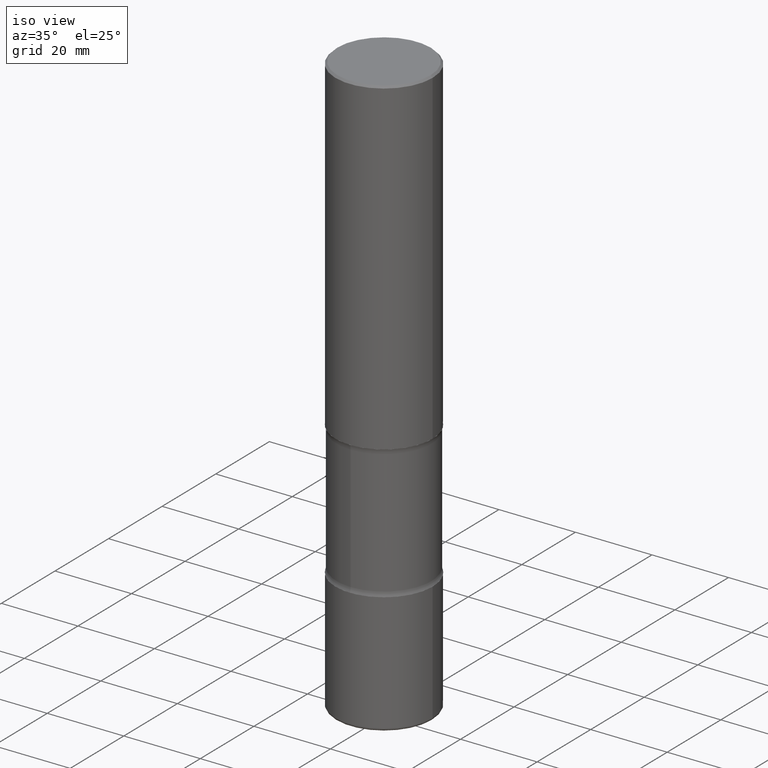
[diagram: clean part render]
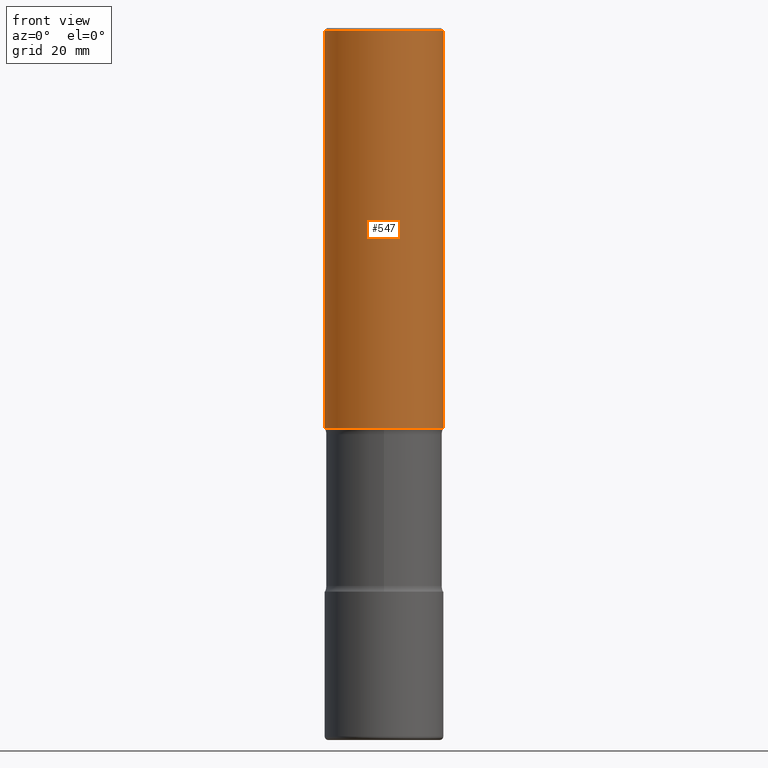
[diagram: tour spotlight — one face highlighted and labeled with its STEP entity id]
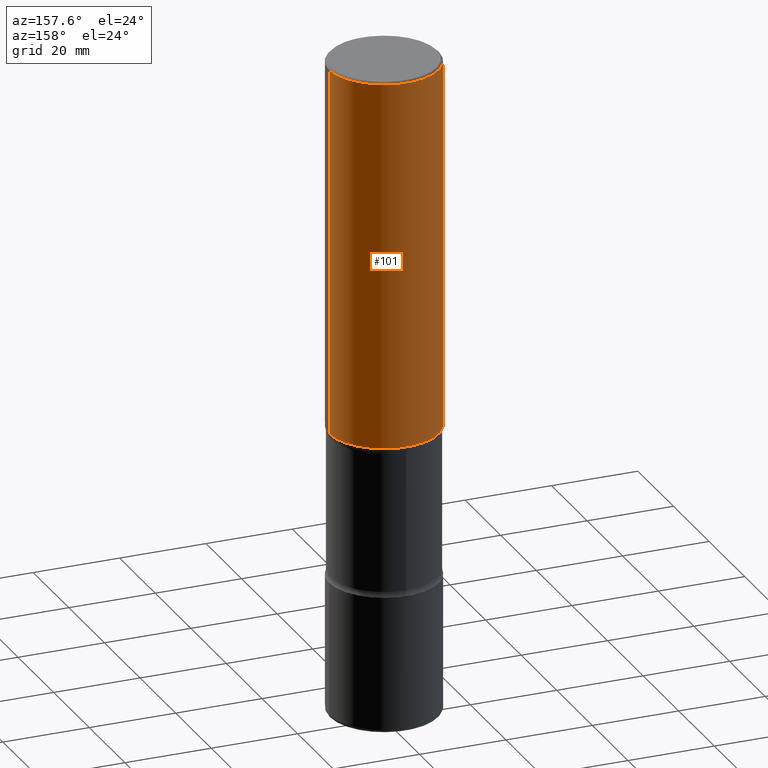
[diagram: tour spotlight — one face highlighted and labeled with its STEP entity id]
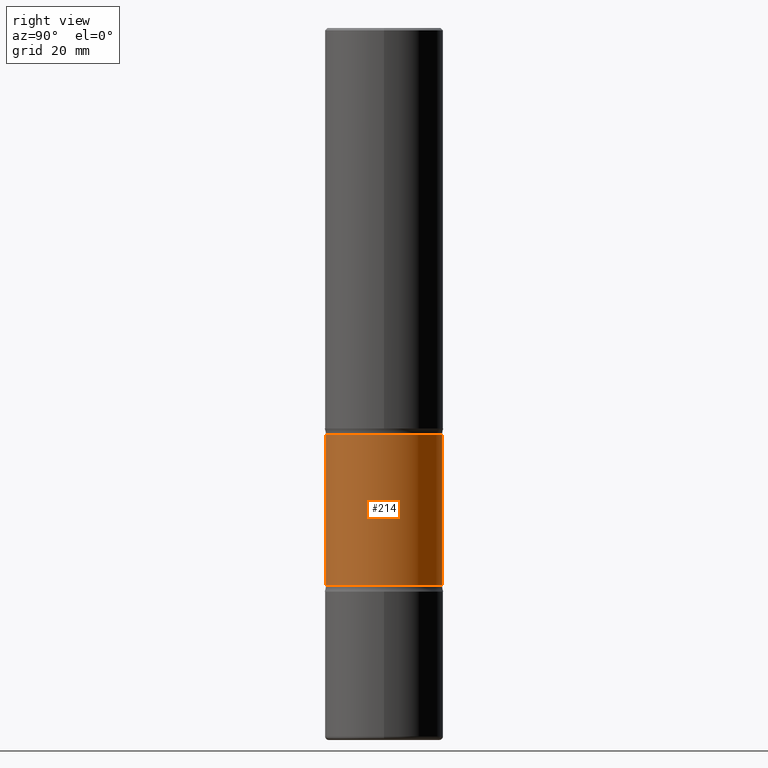
[diagram: tour spotlight — one face highlighted and labeled with its STEP entity id]
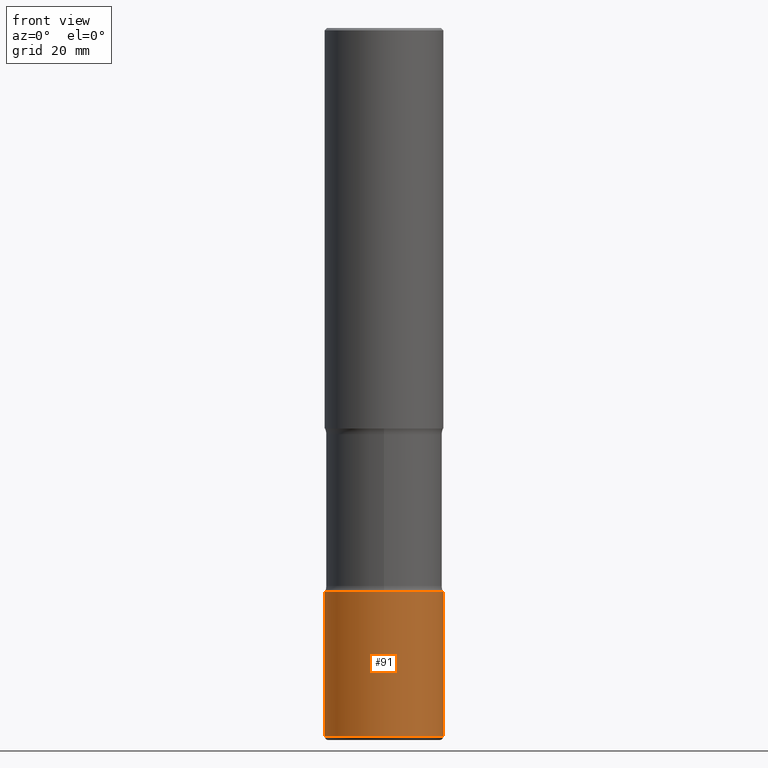
[diagram: tour spotlight — one face highlighted and labeled with its STEP entity id]
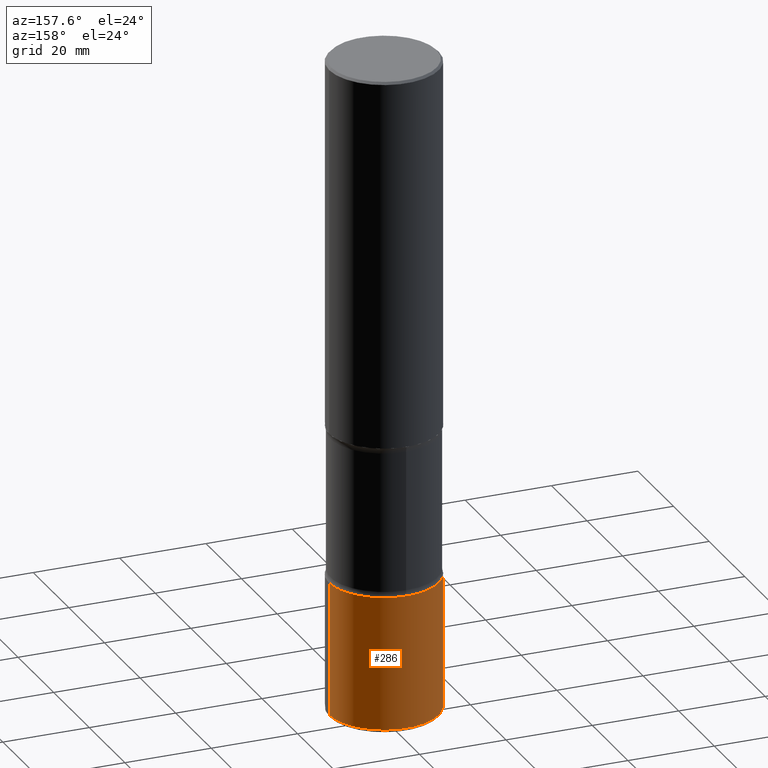
[diagram: tour spotlight — one face highlighted and labeled with its STEP entity id]
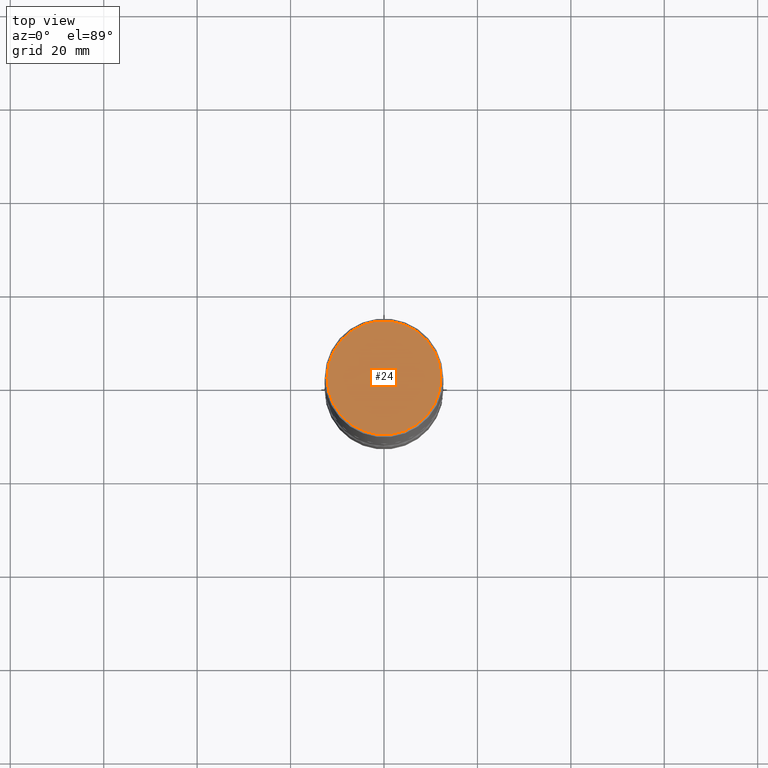
[diagram: tour spotlight — one face highlighted and labeled with its STEP entity id]
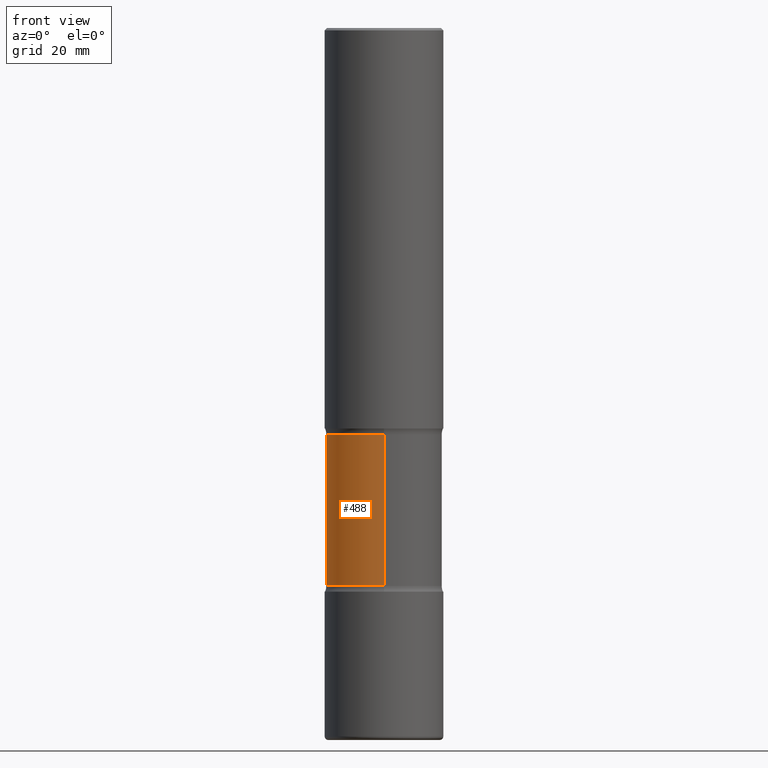
[diagram: tour spotlight — one face highlighted and labeled with its STEP entity id]
A machine part: a face-by-face anatomy tour. The part has 20 B-rep faces; the first image is the clean iso view, then the 7 largest visible faces are spotlighted one at a time (largest first), each with its STEP entity span.

Face 1 — front view, entity #547. In plain terms, the highlighted cylindrical surface (partial cylindrical patch) has radius 12.7 mm, axis along (-0, 0, 1).
Definition (entity closure, byte-faithful):
#4 = LINE ( 'NONE', #95, #504 ) ;
#19 = CARTESIAN_POINT ( 'NONE',  ( -0.5000000000000005551, 3.421651712066274396E-15, -0.02000000000000000042 ) ) ;
#35 = DIRECTION ( 'NONE',  ( -2.445468806185136877E-29, 3.491481338843145188E-15, 1.000000000000000000 ) ) ;
#48 = DIRECTION ( 'NONE',  ( -2.445468806185136877E-29, 3.491481338843145188E-15, 1.000000000000000000 ) ) ;
#63 = DIRECTION ( 'NONE',  ( 1.000000000000000000, -6.982962677686266711E-15, 4.876176775795935793E-29 ) ) ;
#78 = VECTOR ( 'NONE', #35, 39.37007874015748143 ) ;
#95 = CARTESIAN_POINT ( 'NONE',  ( 0.5000000000000006661, -3.491481338843138088E-15, 2.438088387897971260E-29 ) ) ;
#121 = DIRECTION ( 'NONE',  ( -2.445468806185136597E-29, 3.491481338843145583E-15, 1.000000000000000000 ) ) ;
#128 = AXIS2_PLACEMENT_3D ( 'NONE', #525, #310, #270 ) ;
#141 = VERTEX_POINT ( 'NONE', #494 ) ;
#167 = VERTEX_POINT ( 'NONE', #19 ) ;
#216 = ORIENTED_EDGE ( 'NONE', *, *, #332, .T. ) ;
#226 = ORIENTED_EDGE ( 'NONE', *, *, #491, .T. ) ;
#231 = CIRCLE ( 'NONE', #128, 0.5000000000000007772 ) ;
#236 = DIRECTION ( 'NONE',  ( -2.445468806185136597E-29, 3.491481338843145583E-15, 1.000000000000000000 ) ) ;
#248 = DIRECTION ( 'NONE',  ( 1.000000000000000000, -6.982962677686266711E-15, 0.000000000000000000 ) ) ;
#253 = LINE ( 'NONE', #424, #78 ) ;
#268 = CARTESIAN_POINT ( 'NONE',  ( -0.5000000000000007772, -2.374075893885732456E-15, -3.375000000000000444 ) ) ;
#270 = DIRECTION ( 'NONE',  ( 1.000000000000000000, -6.982962677686267499E-15, 0.000000000000000000 ) ) ;
#293 = EDGE_CURVE ( 'NONE', #167, #141, #346, .T. ) ;
#302 = EDGE_CURVE ( 'NONE', #382, #167, #253, .T. ) ;
#310 = DIRECTION ( 'NONE',  ( -2.445468806185136597E-29, 3.491481338843145583E-15, 1.000000000000000000 ) ) ;
#314 = EDGE_LOOP ( 'NONE', ( #375, #226, #216, #530 ) ) ;
#326 = AXIS2_PLACEMENT_3D ( 'NONE', #506, #121, #248 ) ;
#332 = EDGE_CURVE ( 'NONE', #444, #141, #4, .T. ) ;
#346 = CIRCLE ( 'NONE', #326, 0.5000000000000005551 ) ;
#375 = ORIENTED_EDGE ( 'NONE', *, *, #302, .F. ) ;
#382 = VERTEX_POINT ( 'NONE', #268 ) ;
#410 = CYLINDRICAL_SURFACE ( 'NONE', #505, 0.5000000000000006661 ) ;
#424 = CARTESIAN_POINT ( 'NONE',  ( -0.5000000000000006661, 3.552713678800505663E-15, -2.459467545127455974E-29 ) ) ;
#444 = VERTEX_POINT ( 'NONE', #476 ) ;
#453 = FACE_OUTER_BOUND ( 'NONE', #314, .T. ) ;
#476 = CARTESIAN_POINT ( 'NONE',  ( 0.5000000000000007772, -1.527523085743875734E-14, -3.375000000000000444 ) ) ;
#491 = EDGE_CURVE ( 'NONE', #382, #444, #231, .T. ) ;
#494 = CARTESIAN_POINT ( 'NONE',  ( 0.5000000000000005551, -3.500078625662632235E-15, -0.02000000000000000042 ) ) ;
#504 = VECTOR ( 'NONE', #48, 39.37007874015748143 ) ;
#505 = AXIS2_PLACEMENT_3D ( 'NONE', #539, #236, #63 ) ;
#506 = CARTESIAN_POINT ( 'NONE',  ( 4.890937612370273159E-31, -6.982962677686291609E-17, -0.02000000000000000042 ) ) ;
#525 = CARTESIAN_POINT ( 'NONE',  ( 8.253457220874837135E-29, -1.178374951859561767E-14, -3.375000000000000444 ) ) ;
#530 = ORIENTED_EDGE ( 'NONE', *, *, #293, .F. ) ;
#539 = CARTESIAN_POINT ( 'NONE',  ( 0.000000000000000000, 0.000000000000000000, 0.000000000000000000 ) ) ;
#547 = ADVANCED_FACE ( 'NONE', ( #453 ), #410, .T. ) ;

Face 2 — auxiliary view, entity #101. In plain terms, the highlighted cylindrical surface (partial cylindrical patch) has radius 12.7 mm, axis along (-0, 0, 1).
Definition (entity closure, byte-faithful):
#4 = LINE ( 'NONE', #95, #504 ) ;
#9 = CARTESIAN_POINT ( 'NONE',  ( 4.890937612370273159E-31, -6.982962677686291609E-17, -0.02000000000000000042 ) ) ;
#19 = CARTESIAN_POINT ( 'NONE',  ( -0.5000000000000005551, 3.421651712066274396E-15, -0.02000000000000000042 ) ) ;
#26 = DIRECTION ( 'NONE',  ( 1.000000000000000000, -6.982962677686266711E-15, 4.876176775795935793E-29 ) ) ;
#33 = ORIENTED_EDGE ( 'NONE', *, *, #302, .T. ) ;
#34 = EDGE_CURVE ( 'NONE', #141, #167, #98, .T. ) ;
#35 = DIRECTION ( 'NONE',  ( -2.445468806185136877E-29, 3.491481338843145188E-15, 1.000000000000000000 ) ) ;
#48 = DIRECTION ( 'NONE',  ( -2.445468806185136877E-29, 3.491481338843145188E-15, 1.000000000000000000 ) ) ;
#54 = AXIS2_PLACEMENT_3D ( 'NONE', #9, #305, #224 ) ;
#56 = AXIS2_PLACEMENT_3D ( 'NONE', #64, #405, #26 ) ;
#64 = CARTESIAN_POINT ( 'NONE',  ( 0.000000000000000000, 0.000000000000000000, 0.000000000000000000 ) ) ;
#65 = AXIS2_PLACEMENT_3D ( 'NONE', #499, #198, #114 ) ;
#78 = VECTOR ( 'NONE', #35, 39.37007874015748143 ) ;
#95 = CARTESIAN_POINT ( 'NONE',  ( 0.5000000000000006661, -3.491481338843138088E-15, 2.438088387897971260E-29 ) ) ;
#98 = CIRCLE ( 'NONE', #54, 0.5000000000000005551 ) ;
#101 = ADVANCED_FACE ( 'NONE', ( #149 ), #542, .T. ) ;
#114 = DIRECTION ( 'NONE',  ( 1.000000000000000000, -6.982962677686267499E-15, 0.000000000000000000 ) ) ;
#117 = EDGE_LOOP ( 'NONE', ( #490, #33, #355, #388 ) ) ;
#127 = CIRCLE ( 'NONE', #65, 0.5000000000000007772 ) ;
#141 = VERTEX_POINT ( 'NONE', #494 ) ;
#149 = FACE_OUTER_BOUND ( 'NONE', #117, .T. ) ;
#160 = EDGE_CURVE ( 'NONE', #444, #382, #127, .T. ) ;
#167 = VERTEX_POINT ( 'NONE', #19 ) ;
#198 = DIRECTION ( 'NONE',  ( -2.445468806185136597E-29, 3.491481338843145583E-15, 1.000000000000000000 ) ) ;
#224 = DIRECTION ( 'NONE',  ( 1.000000000000000000, -6.982962677686266711E-15, 0.000000000000000000 ) ) ;
#253 = LINE ( 'NONE', #424, #78 ) ;
#268 = CARTESIAN_POINT ( 'NONE',  ( -0.5000000000000007772, -2.374075893885732456E-15, -3.375000000000000444 ) ) ;
#302 = EDGE_CURVE ( 'NONE', #382, #167, #253, .T. ) ;
#305 = DIRECTION ( 'NONE',  ( -2.445468806185136597E-29, 3.491481338843145583E-15, 1.000000000000000000 ) ) ;
#332 = EDGE_CURVE ( 'NONE', #444, #141, #4, .T. ) ;
#355 = ORIENTED_EDGE ( 'NONE', *, *, #34, .F. ) ;
#382 = VERTEX_POINT ( 'NONE', #268 ) ;
#388 = ORIENTED_EDGE ( 'NONE', *, *, #332, .F. ) ;
#405 = DIRECTION ( 'NONE',  ( -2.445468806185136597E-29, 3.491481338843145583E-15, 1.000000000000000000 ) ) ;
#424 = CARTESIAN_POINT ( 'NONE',  ( -0.5000000000000006661, 3.552713678800505663E-15, -2.459467545127455974E-29 ) ) ;
#444 = VERTEX_POINT ( 'NONE', #476 ) ;
#476 = CARTESIAN_POINT ( 'NONE',  ( 0.5000000000000007772, -1.527523085743875734E-14, -3.375000000000000444 ) ) ;
#490 = ORIENTED_EDGE ( 'NONE', *, *, #160, .T. ) ;
#494 = CARTESIAN_POINT ( 'NONE',  ( 0.5000000000000005551, -3.500078625662632235E-15, -0.02000000000000000042 ) ) ;
#499 = CARTESIAN_POINT ( 'NONE',  ( 8.253457220874837135E-29, -1.178374951859561767E-14, -3.375000000000000444 ) ) ;
#504 = VECTOR ( 'NONE', #48, 39.37007874015748143 ) ;
#542 = CYLINDRICAL_SURFACE ( 'NONE', #56, 0.5000000000000006661 ) ;

Face 3 — right view, entity #214. In plain terms, the highlighted cylindrical surface (partial cylindrical patch) has radius 12.446 mm, axis along (0, -0, -1).
Definition (entity closure, byte-faithful):
#2 = VECTOR ( 'NONE', #434, 39.37007874015748143 ) ;
#3 = EDGE_LOOP ( 'NONE', ( #556, #431, #13, #83 ) ) ;
#13 = ORIENTED_EDGE ( 'NONE', *, *, #500, .F. ) ;
#51 = DIRECTION ( 'NONE',  ( 6.982962677686265922E-15, 1.000000000000000000, -3.345119992241955130E-15 ) ) ;
#53 = CARTESIAN_POINT ( 'NONE',  ( 3.421651712066419546E-15, 0.4899999999999793965, -6.000000000000001776 ) ) ;
#66 = DIRECTION ( 'NONE',  ( 2.598079946832093802E-29, -3.272933499350004525E-15, -1.000000000000000000 ) ) ;
#83 = ORIENTED_EDGE ( 'NONE', *, *, #387, .F. ) ;
#97 = CARTESIAN_POINT ( 'NONE',  ( -3.395946508896794322E-15, -0.4900000000000163669, -4.701010205144333653 ) ) ;
#131 = CARTESIAN_POINT ( 'NONE',  ( 3.421651712066385231E-15, 0.4899999999999835598, -4.701010205144337206 ) ) ;
#135 = EDGE_CURVE ( 'NONE', #254, #481, #372, .T. ) ;
#144 = DIRECTION ( 'NONE',  ( 2.598079946832093802E-29, -3.272933499350004525E-15, -1.000000000000000000 ) ) ;
#145 = VECTOR ( 'NONE', #144, 39.37007874015748143 ) ;
#150 = EDGE_CURVE ( 'NONE', #481, #524, #414, .T. ) ;
#177 = DIRECTION ( 'NONE',  ( 2.598079946832093802E-29, -3.272933499350004525E-15, -1.000000000000000000 ) ) ;
#200 = CARTESIAN_POINT ( 'NONE',  ( 1.486357676291951651E-28, -2.067570323369244855E-14, -6.000000000000000888 ) ) ;
#214 = ADVANCED_FACE ( 'NONE', ( #235 ), #366, .T. ) ;
#235 = FACE_OUTER_BOUND ( 'NONE', #3, .T. ) ;
#245 = DIRECTION ( 'NONE',  ( 6.982962677686266711E-15, 1.000000000000000000, -3.345119992241953553E-15 ) ) ;
#254 = VERTEX_POINT ( 'NONE', #502 ) ;
#274 = LINE ( 'NONE', #53, #2 ) ;
#313 = CARTESIAN_POINT ( 'NONE',  ( -3.395946508896831399E-15, -0.4900000000000125366, -3.423989794855664126 ) ) ;
#319 = CARTESIAN_POINT ( 'NONE',  ( -3.361644018907902538E-15, -0.4900000000000208078, -5.999999999999999112 ) ) ;
#322 = CARTESIAN_POINT ( 'NONE',  ( 8.170896306099193759E-29, -1.224459313860807689E-14, -3.423989794855665902 ) ) ;
#366 = CYLINDRICAL_SURFACE ( 'NONE', #496, 0.4900000000000001021 ) ;
#369 = DIRECTION ( 'NONE',  ( 6.982962677686266711E-15, 1.000000000000000000, -2.230079994827969693E-15 ) ) ;
#372 = CIRCLE ( 'NONE', #427, 0.4900000000000002132 ) ;
#387 = EDGE_CURVE ( 'NONE', #254, #509, #274, .T. ) ;
#414 = LINE ( 'NONE', #319, #145 ) ;
#427 = AXIS2_PLACEMENT_3D ( 'NONE', #322, #66, #245 ) ;
#431 = ORIENTED_EDGE ( 'NONE', *, *, #150, .T. ) ;
#434 = DIRECTION ( 'NONE',  ( 2.598079946832093802E-29, -3.272933499350004525E-15, -1.000000000000000000 ) ) ;
#437 = CIRCLE ( 'NONE', #465, 0.4899999999999999911 ) ;
#441 = CARTESIAN_POINT ( 'NONE',  ( 1.148869742576547963E-28, -1.642419601879555421E-14, -4.701010205144335430 ) ) ;
#465 = AXIS2_PLACEMENT_3D ( 'NONE', #441, #177, #51 ) ;
#481 = VERTEX_POINT ( 'NONE', #313 ) ;
#496 = AXIS2_PLACEMENT_3D ( 'NONE', #200, #537, #369 ) ;
#500 = EDGE_CURVE ( 'NONE', #509, #524, #437, .T. ) ;
#502 = CARTESIAN_POINT ( 'NONE',  ( 3.421651712066353676E-15, 0.4899999999999880007, -3.423989794855667679 ) ) ;
#509 = VERTEX_POINT ( 'NONE', #131 ) ;
#524 = VERTEX_POINT ( 'NONE', #97 ) ;
#537 = DIRECTION ( 'NONE',  ( 2.598079946832093802E-29, -3.272933499350004525E-15, -1.000000000000000000 ) ) ;
#556 = ORIENTED_EDGE ( 'NONE', *, *, #135, .T. ) ;

Face 4 — front view, entity #91. In plain terms, the highlighted cylindrical surface (partial cylindrical patch) has radius 12.7 mm, axis along (-0, 0, 1).
Definition (entity closure, byte-faithful):
#12 = CARTESIAN_POINT ( 'NONE',  ( 0.5000000000000006661, -2.007601769834807990E-14, -4.750000000000000000 ) ) ;
#43 = VERTEX_POINT ( 'NONE', #187 ) ;
#47 = ORIENTED_EDGE ( 'NONE', *, *, #304, .T. ) ;
#52 = VERTEX_POINT ( 'NONE', #442 ) ;
#59 = DIRECTION ( 'NONE',  ( -2.445468806185136597E-29, 3.491481338843145583E-15, 1.000000000000000000 ) ) ;
#86 = ORIENTED_EDGE ( 'NONE', *, *, #422, .F. ) ;
#88 = DIRECTION ( 'NONE',  ( -2.445468806185136597E-29, 3.491481338843145583E-15, 1.000000000000000000 ) ) ;
#91 = ADVANCED_FACE ( 'NONE', ( #452 ), #324, .T. ) ;
#104 = CARTESIAN_POINT ( 'NONE',  ( 1.459944877292526494E-28, -2.084414359289357934E-14, -5.969999999999999751 ) ) ;
#136 = VECTOR ( 'NONE', #306, 39.37007874015748143 ) ;
#166 = CARTESIAN_POINT ( 'NONE',  ( 0.5000000000000006661, -3.491481338843138088E-15, 2.438088387897971260E-29 ) ) ;
#187 = CARTESIAN_POINT ( 'NONE',  ( -0.5000000000000007772, -1.729142991409307210E-14, -5.969999999999999751 ) ) ;
#196 = AXIS2_PLACEMENT_3D ( 'NONE', #104, #59, #278 ) ;
#219 = CARTESIAN_POINT ( 'NONE',  ( 1.161597682937940108E-28, -1.658453635950494339E-14, -4.750000000000000000 ) ) ;
#228 = VERTEX_POINT ( 'NONE', #460 ) ;
#232 = EDGE_LOOP ( 'NONE', ( #86, #429, #47, #258 ) ) ;
#258 = ORIENTED_EDGE ( 'NONE', *, *, #448, .F. ) ;
#261 = DIRECTION ( 'NONE',  ( -2.445468806185136877E-29, 3.491481338843145188E-15, 1.000000000000000000 ) ) ;
#263 = DIRECTION ( 'NONE',  ( 1.000000000000000000, -6.982962677686265133E-15, 0.000000000000000000 ) ) ;
#277 = VECTOR ( 'NONE', #261, 39.37007874015748143 ) ;
#278 = DIRECTION ( 'NONE',  ( 1.000000000000000000, -6.982962677686269077E-15, 0.000000000000000000 ) ) ;
#298 = AXIS2_PLACEMENT_3D ( 'NONE', #458, #495, #416 ) ;
#304 = EDGE_CURVE ( 'NONE', #228, #345, #554, .T. ) ;
#306 = DIRECTION ( 'NONE',  ( -2.445468806185136877E-29, 3.491481338843145188E-15, 1.000000000000000000 ) ) ;
#324 = CYLINDRICAL_SURFACE ( 'NONE', #298, 0.5000000000000006661 ) ;
#345 = VERTEX_POINT ( 'NONE', #12 ) ;
#399 = CARTESIAN_POINT ( 'NONE',  ( -0.5000000000000006661, 3.552713678800505663E-15, -2.459467545127455974E-29 ) ) ;
#416 = DIRECTION ( 'NONE',  ( 1.000000000000000000, -6.982962677686266711E-15, 4.876176775795935793E-29 ) ) ;
#419 = CIRCLE ( 'NONE', #196, 0.5000000000000006661 ) ;
#422 = EDGE_CURVE ( 'NONE', #43, #52, #479, .T. ) ;
#429 = ORIENTED_EDGE ( 'NONE', *, *, #538, .T. ) ;
#442 = CARTESIAN_POINT ( 'NONE',  ( -0.5000000000000006661, -1.516162629739875255E-14, -4.750000000000000000 ) ) ;
#448 = EDGE_CURVE ( 'NONE', #52, #345, #553, .T. ) ;
#452 = FACE_OUTER_BOUND ( 'NONE', #232, .T. ) ;
#455 = AXIS2_PLACEMENT_3D ( 'NONE', #219, #88, #263 ) ;
#458 = CARTESIAN_POINT ( 'NONE',  ( 0.000000000000000000, 0.000000000000000000, 0.000000000000000000 ) ) ;
#460 = CARTESIAN_POINT ( 'NONE',  ( 0.5000000000000007772, -2.433562493173672216E-14, -5.969999999999999751 ) ) ;
#479 = LINE ( 'NONE', #399, #136 ) ;
#495 = DIRECTION ( 'NONE',  ( -2.445468806185136597E-29, 3.491481338843145583E-15, 1.000000000000000000 ) ) ;
#538 = EDGE_CURVE ( 'NONE', #43, #228, #419, .T. ) ;
#553 = CIRCLE ( 'NONE', #455, 0.5000000000000006661 ) ;
#554 = LINE ( 'NONE', #166, #277 ) ;

Face 5 — auxiliary view, entity #286. In plain terms, the highlighted cylindrical surface (partial cylindrical patch) has radius 12.7 mm, axis along (-0, 0, 1).
Definition (entity closure, byte-faithful):
#12 = CARTESIAN_POINT ( 'NONE',  ( 0.5000000000000006661, -2.007601769834807990E-14, -4.750000000000000000 ) ) ;
#42 = CARTESIAN_POINT ( 'NONE',  ( 1.161597682937940108E-28, -1.658453635950494339E-14, -4.750000000000000000 ) ) ;
#43 = VERTEX_POINT ( 'NONE', #187 ) ;
#52 = VERTEX_POINT ( 'NONE', #442 ) ;
#69 = DIRECTION ( 'NONE',  ( 1.000000000000000000, -6.982962677686266711E-15, 4.876176775795935793E-29 ) ) ;
#80 = DIRECTION ( 'NONE',  ( 1.000000000000000000, -6.982962677686269077E-15, 0.000000000000000000 ) ) ;
#93 = ORIENTED_EDGE ( 'NONE', *, *, #330, .T. ) ;
#100 = AXIS2_PLACEMENT_3D ( 'NONE', #295, #472, #80 ) ;
#136 = VECTOR ( 'NONE', #306, 39.37007874015748143 ) ;
#159 = EDGE_LOOP ( 'NONE', ( #93, #551, #218, #507 ) ) ;
#161 = DIRECTION ( 'NONE',  ( -2.445468806185136597E-29, 3.491481338843145583E-15, 1.000000000000000000 ) ) ;
#166 = CARTESIAN_POINT ( 'NONE',  ( 0.5000000000000006661, -3.491481338843138088E-15, 2.438088387897971260E-29 ) ) ;
#187 = CARTESIAN_POINT ( 'NONE',  ( -0.5000000000000007772, -1.729142991409307210E-14, -5.969999999999999751 ) ) ;
#207 = CARTESIAN_POINT ( 'NONE',  ( 0.000000000000000000, 0.000000000000000000, 0.000000000000000000 ) ) ;
#218 = ORIENTED_EDGE ( 'NONE', *, *, #440, .F. ) ;
#222 = AXIS2_PLACEMENT_3D ( 'NONE', #207, #161, #69 ) ;
#228 = VERTEX_POINT ( 'NONE', #460 ) ;
#230 = DIRECTION ( 'NONE',  ( 1.000000000000000000, -6.982962677686265133E-15, 0.000000000000000000 ) ) ;
#261 = DIRECTION ( 'NONE',  ( -2.445468806185136877E-29, 3.491481338843145188E-15, 1.000000000000000000 ) ) ;
#277 = VECTOR ( 'NONE', #261, 39.37007874015748143 ) ;
#286 = ADVANCED_FACE ( 'NONE', ( #421 ), #384, .T. ) ;
#295 = CARTESIAN_POINT ( 'NONE',  ( 1.459944877292526494E-28, -2.084414359289357934E-14, -5.969999999999999751 ) ) ;
#304 = EDGE_CURVE ( 'NONE', #228, #345, #554, .T. ) ;
#306 = DIRECTION ( 'NONE',  ( -2.445468806185136877E-29, 3.491481338843145188E-15, 1.000000000000000000 ) ) ;
#330 = EDGE_CURVE ( 'NONE', #228, #43, #473, .T. ) ;
#345 = VERTEX_POINT ( 'NONE', #12 ) ;
#384 = CYLINDRICAL_SURFACE ( 'NONE', #222, 0.5000000000000006661 ) ;
#399 = CARTESIAN_POINT ( 'NONE',  ( -0.5000000000000006661, 3.552713678800505663E-15, -2.459467545127455974E-29 ) ) ;
#408 = CIRCLE ( 'NONE', #482, 0.5000000000000006661 ) ;
#421 = FACE_OUTER_BOUND ( 'NONE', #159, .T. ) ;
#422 = EDGE_CURVE ( 'NONE', #43, #52, #479, .T. ) ;
#440 = EDGE_CURVE ( 'NONE', #345, #52, #408, .T. ) ;
#442 = CARTESIAN_POINT ( 'NONE',  ( -0.5000000000000006661, -1.516162629739875255E-14, -4.750000000000000000 ) ) ;
#460 = CARTESIAN_POINT ( 'NONE',  ( 0.5000000000000007772, -2.433562493173672216E-14, -5.969999999999999751 ) ) ;
#472 = DIRECTION ( 'NONE',  ( -2.445468806185136597E-29, 3.491481338843145583E-15, 1.000000000000000000 ) ) ;
#473 = CIRCLE ( 'NONE', #100, 0.5000000000000006661 ) ;
#479 = LINE ( 'NONE', #399, #136 ) ;
#482 = AXIS2_PLACEMENT_3D ( 'NONE', #42, #531, #230 ) ;
#507 = ORIENTED_EDGE ( 'NONE', *, *, #304, .F. ) ;
#531 = DIRECTION ( 'NONE',  ( -2.445468806185136597E-29, 3.491481338843145583E-15, 1.000000000000000000 ) ) ;
#551 = ORIENTED_EDGE ( 'NONE', *, *, #422, .T. ) ;
#554 = LINE ( 'NONE', #166, #277 ) ;

Face 6 — top view, entity #24. In plain terms, the highlighted planar face has unit normal (0, -0, -1).
Definition (entity closure, byte-faithful):
#20 = AXIS2_PLACEMENT_3D ( 'NONE', #22, #112, #243 ) ;
#22 = CARTESIAN_POINT ( 'NONE',  ( -3.131554243005659264E-46, 4.471029511141341874E-32, 1.280553747030123384E-17 ) ) ;
#24 = ADVANCED_FACE ( 'NONE', ( #90 ), #521, .F. ) ;
#60 = EDGE_CURVE ( 'NONE', #252, #433, #70, .T. ) ;
#70 = CIRCLE ( 'NONE', #20, 0.4800000000000005929 ) ;
#90 = FACE_OUTER_BOUND ( 'NONE', #316, .T. ) ;
#112 = DIRECTION ( 'NONE',  ( -2.445468806185136597E-29, 3.491481338843145583E-15, 1.000000000000000000 ) ) ;
#124 = DIRECTION ( 'NONE',  ( 1.000000000000000000, -6.982962677686266711E-15, 4.876036955247123238E-29 ) ) ;
#132 = DIRECTION ( 'NONE',  ( 2.438088387897960049E-29, -3.491481338843145188E-15, -1.000000000000000000 ) ) ;
#154 = AXIS2_PLACEMENT_3D ( 'NONE', #342, #513, #124 ) ;
#183 = CARTESIAN_POINT ( 'NONE',  ( 3.351822085289412281E-15, 0.4800000000000005929, -1.669508273909561417E-15 ) ) ;
#210 = ORIENTED_EDGE ( 'NONE', *, *, #60, .T. ) ;
#212 = AXIS2_PLACEMENT_3D ( 'NONE', #183, #132, #395 ) ;
#243 = DIRECTION ( 'NONE',  ( 1.000000000000000000, -6.982962677686266711E-15, 4.876036955247123238E-29 ) ) ;
#252 = VERTEX_POINT ( 'NONE', #334 ) ;
#265 = CARTESIAN_POINT ( 'NONE',  ( -0.4800000000000005929, 3.386736898677843141E-15, 1.280553747027767124E-17 ) ) ;
#294 = ORIENTED_EDGE ( 'NONE', *, *, #329, .T. ) ;
#316 = EDGE_LOOP ( 'NONE', ( #294, #210 ) ) ;
#329 = EDGE_CURVE ( 'NONE', #433, #252, #397, .T. ) ;
#334 = CARTESIAN_POINT ( 'NONE',  ( 0.4800000000000005929, -3.396558832296486043E-15, 1.280553747032483033E-17 ) ) ;
#342 = CARTESIAN_POINT ( 'NONE',  ( -3.131554243005659264E-46, 4.471029511141341874E-32, 1.280553747030123384E-17 ) ) ;
#395 = DIRECTION ( 'NONE',  ( -1.000000000000000000, 6.982962677686265922E-15, -4.876176775795935793E-29 ) ) ;
#397 = CIRCLE ( 'NONE', #154, 0.4800000000000005929 ) ;
#433 = VERTEX_POINT ( 'NONE', #265 ) ;
#513 = DIRECTION ( 'NONE',  ( -2.445468806185136597E-29, 3.491481338843145583E-15, 1.000000000000000000 ) ) ;
#521 = PLANE ( 'NONE',  #212 ) ;

Face 7 — front view, entity #488. In plain terms, the highlighted cylindrical surface (partial cylindrical patch) has radius 12.446 mm, axis along (0, -0, -1).
Definition (entity closure, byte-faithful):
#2 = VECTOR ( 'NONE', #434, 39.37007874015748143 ) ;
#41 = ORIENTED_EDGE ( 'NONE', *, *, #150, .F. ) ;
#53 = CARTESIAN_POINT ( 'NONE',  ( 3.421651712066419546E-15, 0.4899999999999793965, -6.000000000000001776 ) ) ;
#92 = DIRECTION ( 'NONE',  ( 6.982962677686265922E-15, 1.000000000000000000, -3.345119992241955130E-15 ) ) ;
#97 = CARTESIAN_POINT ( 'NONE',  ( -3.395946508896794322E-15, -0.4900000000000163669, -4.701010205144333653 ) ) ;
#131 = CARTESIAN_POINT ( 'NONE',  ( 3.421651712066385231E-15, 0.4899999999999835598, -4.701010205144337206 ) ) ;
#144 = DIRECTION ( 'NONE',  ( 2.598079946832093802E-29, -3.272933499350004525E-15, -1.000000000000000000 ) ) ;
#145 = VECTOR ( 'NONE', #144, 39.37007874015748143 ) ;
#150 = EDGE_CURVE ( 'NONE', #481, #524, #414, .T. ) ;
#182 = FACE_OUTER_BOUND ( 'NONE', #360, .T. ) ;
#185 = DIRECTION ( 'NONE',  ( 2.598079946832093802E-29, -3.272933499350004525E-15, -1.000000000000000000 ) ) ;
#189 = ORIENTED_EDGE ( 'NONE', *, *, #234, .T. ) ;
#209 = DIRECTION ( 'NONE',  ( 6.982962677686266711E-15, 1.000000000000000000, -3.345119992241953553E-15 ) ) ;
#221 = CIRCLE ( 'NONE', #417, 0.4899999999999999911 ) ;
#223 = CARTESIAN_POINT ( 'NONE',  ( 1.486357676291951651E-28, -2.067570323369244855E-14, -6.000000000000000888 ) ) ;
#234 = EDGE_CURVE ( 'NONE', #481, #254, #356, .T. ) ;
#249 = AXIS2_PLACEMENT_3D ( 'NONE', #559, #549, #209 ) ;
#254 = VERTEX_POINT ( 'NONE', #502 ) ;
#260 = AXIS2_PLACEMENT_3D ( 'NONE', #223, #185, #394 ) ;
#274 = LINE ( 'NONE', #53, #2 ) ;
#313 = CARTESIAN_POINT ( 'NONE',  ( -3.395946508896831399E-15, -0.4900000000000125366, -3.423989794855664126 ) ) ;
#319 = CARTESIAN_POINT ( 'NONE',  ( -3.361644018907902538E-15, -0.4900000000000208078, -5.999999999999999112 ) ) ;
#354 = CYLINDRICAL_SURFACE ( 'NONE', #260, 0.4900000000000001021 ) ;
#356 = CIRCLE ( 'NONE', #249, 0.4900000000000002132 ) ;
#360 = EDGE_LOOP ( 'NONE', ( #41, #189, #423, #391 ) ) ;
#362 = EDGE_CURVE ( 'NONE', #524, #509, #221, .T. ) ;
#386 = CARTESIAN_POINT ( 'NONE',  ( 1.148869742576547963E-28, -1.642419601879555421E-14, -4.701010205144335430 ) ) ;
#387 = EDGE_CURVE ( 'NONE', #254, #509, #274, .T. ) ;
#391 = ORIENTED_EDGE ( 'NONE', *, *, #362, .F. ) ;
#394 = DIRECTION ( 'NONE',  ( 6.982962677686266711E-15, 1.000000000000000000, -2.230079994827969693E-15 ) ) ;
#414 = LINE ( 'NONE', #319, #145 ) ;
#417 = AXIS2_PLACEMENT_3D ( 'NONE', #386, #523, #92 ) ;
#423 = ORIENTED_EDGE ( 'NONE', *, *, #387, .T. ) ;
#434 = DIRECTION ( 'NONE',  ( 2.598079946832093802E-29, -3.272933499350004525E-15, -1.000000000000000000 ) ) ;
#481 = VERTEX_POINT ( 'NONE', #313 ) ;
#488 = ADVANCED_FACE ( 'NONE', ( #182 ), #354, .T. ) ;
#502 = CARTESIAN_POINT ( 'NONE',  ( 3.421651712066353676E-15, 0.4899999999999880007, -3.423989794855667679 ) ) ;
#509 = VERTEX_POINT ( 'NONE', #131 ) ;
#523 = DIRECTION ( 'NONE',  ( 2.598079946832093802E-29, -3.272933499350004525E-15, -1.000000000000000000 ) ) ;
#524 = VERTEX_POINT ( 'NONE', #97 ) ;
#549 = DIRECTION ( 'NONE',  ( 2.598079946832093802E-29, -3.272933499350004525E-15, -1.000000000000000000 ) ) ;
#559 = CARTESIAN_POINT ( 'NONE',  ( 8.170896306099193759E-29, -1.224459313860807689E-14, -3.423989794855665902 ) ) ;